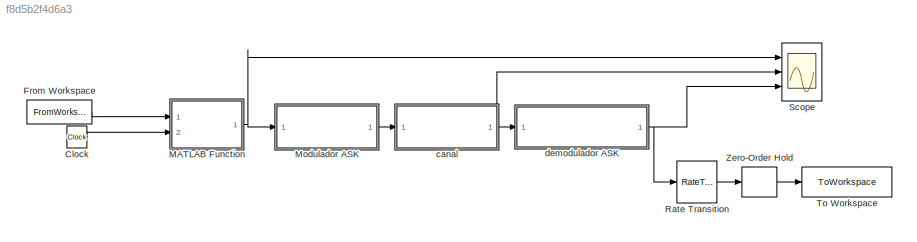
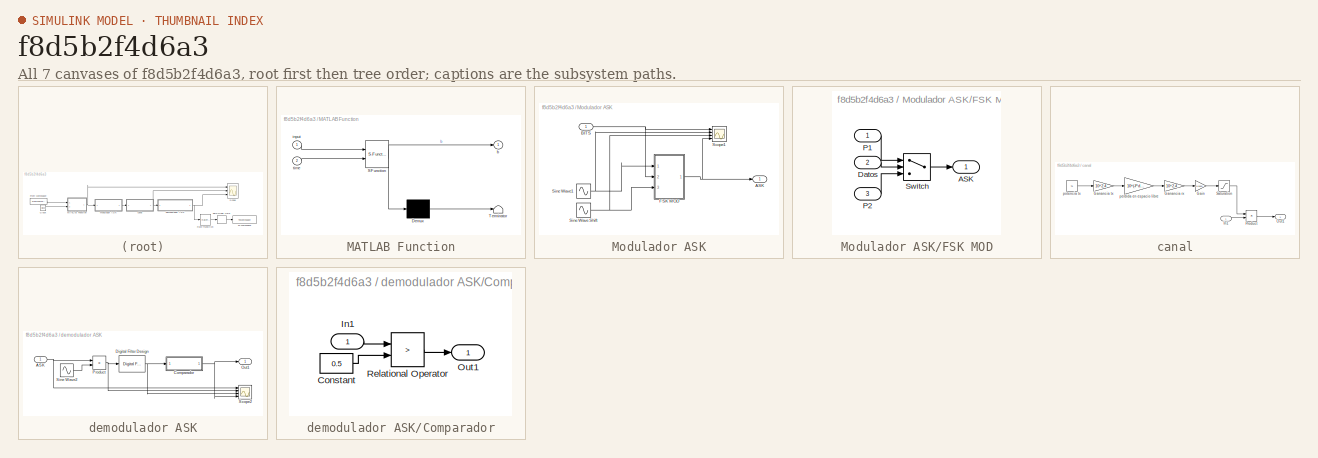
[diagram: thumbnail index - all 7 canvases of the model, root first then tree order]
MODEL slx_f8d5b2f4d6a3
KIND model
CONFIG AbsTol = auto
CONFIG EnableMultiTasking = off
CONFIG FixedStep = 1e-9
CONFIG MaxStep = auto
CONFIG MinStep = auto
CONFIG RelTol = 1e-3
CONFIG SampleTimeConstraint = Unconstrained
CONFIG SolverName = VariableStepAuto
CONFIG StartTime = 0.0
CONFIG StopTime = 205.1*6
BLOCK [Clock] Clock
BLOCK [FromWorkspace] From Workspace
  VariableName = binary
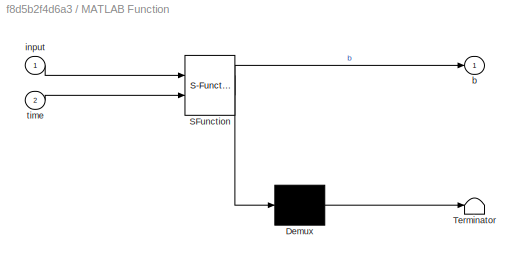
BLOCK [SubSystem] MATLAB Function
  ErrorFcn = Stateflow.Translate.translate
  PermitHierarchicalResolution = ExplicitOnly
  Ports = [2, 1]
  RequestExecContextInheritance = off
  SFBlockType = MATLAB Function
  TreatAsAtomicUnit = on
BLOCK [Demux] MATLAB Function/ Demux 
  Outputs = 1
  Ports = [1, 1]
BLOCK [S-Function] MATLAB Function/ SFunction 
  EnableBusSupport = on
  FunctionName = sf_sfun
  PortCounts = [2 2]
  Ports = [2, 2]
  SFcnIsStateOwnerBlock = off
  SFunctionDeploymentMode = off
  Tag = Stateflow S-Function 2
BLOCK [Terminator] MATLAB Function/ Terminator 
BLOCK [Outport] MATLAB Function/b
BLOCK [Inport] MATLAB Function/input
BLOCK [Inport] MATLAB Function/time
  Port = 2
BLOCK [SubSystem] Modulador ASK
  Ports = [1, 1]
  RequestExecContextInheritance = off
BLOCK [Outport] Modulador ASK/ASK
BLOCK [Inport] Modulador ASK/BITS
BLOCK [SubSystem] Modulador ASK/FSK MOD
  Ports = [3, 1]
  RequestExecContextInheritance = off
BLOCK [Outport] Modulador ASK/FSK MOD/ASK
BLOCK [Inport] Modulador ASK/FSK MOD/Datos
  Port = 2
BLOCK [Inport] Modulador ASK/FSK MOD/P1
BLOCK [Inport] Modulador ASK/FSK MOD/P2
  Port = 3
BLOCK [Switch] Modulador ASK/FSK MOD/Switch
  InputSameDT = off
  SaturateOnIntegerOverflow = off
  Threshold = 0.5
BLOCK [Scope] Modulador ASK/Scope1
  Floating = off
  NumInputPorts = 4
  Ports = [4]
  ScopeSpecificationString = C++SS(StrPVP('Location','[346, 213, 912, 657]'),StrPVP('Open','off'),MxPVP('AxesTitles',54,'struct(''axes1'',''SEÑAL BINARIA'',''axes2'',''PORTADORA '',''axes3'',''PORTADORA 2'',''axes4'',''ASK'')'),StrPVP('YMin','-2~-3~-3~-3'),StrPVP('YMax','2~3~3~3'),StrPVP('SaveName','ScopeData1'),StrPVP('DataFormat','StructureWithTime'),StrPVP('BlockParamSampleTime','0'),StrPVP('LimitDataPoints','on'),StrPVP('...<+55ch>
BLOCK [Sin] Modulador ASK/Sine Wave Shift
  Amplitude = 0.5
  Frequency = 2*10*pi
  Phase = -pi
  Ports = [0, 1]
  SampleTime = 1/20
  Samples = 50
  SineType = Sample based
BLOCK [Sin] Modulador ASK/Sine Wave1
  Amplitude = 2
  Frequency = 2*10*pi
  Ports = [0, 1]
  SampleTime = 1/20
  Samples = 50
  SineType = Sample based
BLOCK [RateTransition] Rate Transition
BLOCK [Scope] Scope
  Floating = off
  NumInputPorts = 3
  Ports = [3]
  ScopeSpecificationString = Simulink.scopes.TimeScopeBlockCfg('CurrentConfiguration', extmgr.ConfigurationSet(extmgr.Configuration('Core','General UI',true),extmgr.Configuration('Core','Source UI',true),extmgr.Configuration('Sources','WiredSimulink',true,'DataLoggingVariableName','ScopeData2'),extmgr.Configuration('Visuals','Time Domain',true,'SerializedDisplays',{struct('MinYLimReal','-0.125','MaxYLimReal','1.125','YLabelRe...<+2723ch>
BLOCK [ToWorkspace] To Workspace
  FixptAsFi = on
  MaxDataPoints = inf
  Ports = [1]
  SampleTime = -1
  SaveFormat = Timeseries
  VariableName = out
BLOCK [ZeroOrderHold] Zero-Order Hold
  SampleTime = 6
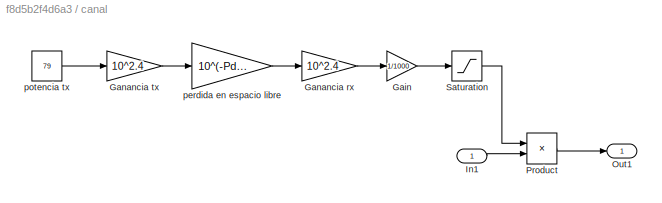
BLOCK [SubSystem] canal
  Ports = [1, 1]
  RequestExecContextInheritance = off
BLOCK [Gain] canal/Gain
  Gain = 1/1000
BLOCK [Gain] canal/Ganancia rx
  Gain = 10^2.4
BLOCK [Gain] canal/Ganancia tx
  Gain = 10^2.4
BLOCK [Inport] canal/In1
BLOCK [Outport] canal/Out1
BLOCK [Product] canal/Product
  Ports = [2, 1]
BLOCK [Saturate] canal/Saturation
  LowerLimit = 0
  UpperLimit = 1
BLOCK [Gain] canal/perdida en espacio libre
  Gain = 10^(-Pd/20)
BLOCK [Constant] canal/potencia tx
  Value = 79
BLOCK [SubSystem] demodulador ASK
  Ports = [1, 1]
  RequestExecContextInheritance = off
BLOCK [Inport] demodulador ASK/ASK
BLOCK [SubSystem] demodulador ASK/Comparador
  Ports = [1, 1]
  RequestExecContextInheritance = off
BLOCK [Constant] demodulador ASK/Comparador/Constant
  Value = 0.5
BLOCK [Inport] demodulador ASK/Comparador/In1
BLOCK [Outport] demodulador ASK/Comparador/Out1
BLOCK [RelationalOperator] demodulador ASK/Comparador/Relational Operator
  InputSameDT = off
  Operator = >
  OutDataTypeStr = boolean
  Ports = [2, 1]
BLOCK [Reference] demodulador ASK/Digital Filter Design  REF=dsparch4/Digital
Filter Design
  Ports = [1, 1]
  SourceBlock = dsparch4/Digital\nFilter Design
  SourceProductBaseCode = DS
  SourceType = Digital Filter Design
  UserDataPersistent = on
BLOCK [Outport] demodulador ASK/Out1
BLOCK [Product] demodulador ASK/Product
  Ports = [2, 1]
  RndMeth = Zero
BLOCK [Scope] demodulador ASK/Scope2
  Floating = off
  NumInputPorts = 4
  Ports = [4]
  ScopeSpecificationString = Simulink.scopes.TimeScopeBlockCfg('CurrentConfiguration', extmgr.ConfigurationSet(extmgr.Configuration('Core','General UI',true),extmgr.Configuration('Core','Source UI',true),extmgr.Configuration('Sources','WiredSimulink',true,'DataLoggingSaveFormat','StructureWithTime','DataLoggingLimitDataPoints',true,'DataLoggingDecimation','1','DataLoggingDecimateData',true),extmgr.Configuration('Visuals','Tim...<+3687ch>
BLOCK [Sin] demodulador ASK/Sine Wave2
  Frequency = 2*10*pi
  Ports = [0, 1]
  SampleTime = 1/20
  Samples = 50
  SineType = Sample based
LINE Clock:1 -> MATLAB Function:2
LINE From Workspace:1 -> MATLAB Function:1
NET MATLAB Function:1 -> Modulador ASK:1, Scope:1
NET Modulador ASK/BITS:1 -> Modulador ASK/FSK MOD:2, Modulador ASK/Scope1:1
LINE Modulador ASK/FSK MOD/Datos:1 -> Modulador ASK/FSK MOD/Switch:2
LINE Modulador ASK/FSK MOD/P1:1 -> Modulador ASK/FSK MOD/Switch:1
LINE Modulador ASK/FSK MOD/P2:1 -> Modulador ASK/FSK MOD/Switch:3
LINE Modulador ASK/FSK MOD/Switch:1 -> Modulador ASK/FSK MOD/ASK:1
NET Modulador ASK/FSK MOD:1 -> Modulador ASK/ASK:1, Modulador ASK/Scope1:4
NET Modulador ASK/Sine Wave Shift:1 -> Modulador ASK/FSK MOD:3, Modulador ASK/Scope1:3
NET Modulador ASK/Sine Wave1:1 -> Modulador ASK/FSK MOD:1, Modulador ASK/Scope1:2
LINE Modulador ASK:1 -> canal:1
LINE Rate Transition:1 -> Zero-Order Hold:1
LINE Zero-Order Hold:1 -> To Workspace:1
LINE canal/Gain:1 -> canal/Saturation:1
LINE canal/Ganancia rx:1 -> canal/Gain:1
LINE canal/Ganancia tx:1 -> canal/perdida en espacio libre:1
LINE canal/In1:1 -> canal/Product:2
LINE canal/Product:1 -> canal/Out1:1
LINE canal/Saturation:1 -> canal/Product:1
LINE canal/perdida en espacio libre:1 -> canal/Ganancia rx:1
LINE canal/potencia tx:1 -> canal/Ganancia tx:1
NET canal:1 -> Scope:2, demodulador ASK:1
NET demodulador ASK/ASK:1 -> demodulador ASK/Product:1, demodulador ASK/Scope2:1
LINE demodulador ASK/Comparador/Constant:1 -> demodulador ASK/Comparador/Relational Operator:2
LINE demodulador ASK/Comparador/In1:1 -> demodulador ASK/Comparador/Relational Operator:1
LINE demodulador ASK/Comparador/Relational Operator:1 -> demodulador ASK/Comparador/Out1:1
NET demodulador ASK/Comparador:1 -> demodulador ASK/Out1:1, demodulador ASK/Scope2:4
NET demodulador ASK/Digital Filter Design:1 -> demodulador ASK/Comparador:1, demodulador ASK/Scope2:3
NET demodulador ASK/Product:1 -> demodulador ASK/Digital Filter Design:1, demodulador ASK/Scope2:2
LINE demodulador ASK/Sine Wave2:1 -> demodulador ASK/Product:2
NET demodulador ASK:1 -> Rate Transition:1, Scope:3
note: NET lines group one-source signal fan-out (src -> all destinations, sorted); 1:1 wires keep LINE
CHART MATLAB Function states=1 transitions=1
  STATE_LABEL 'eML_blk_kernel()'
  STATE_LABEL 'SCRIPT:\nfunction b = fcn(input,time)\n    b=input(floor(time/6)+1);\nend\n'
CHART  states=0 transitions=0
